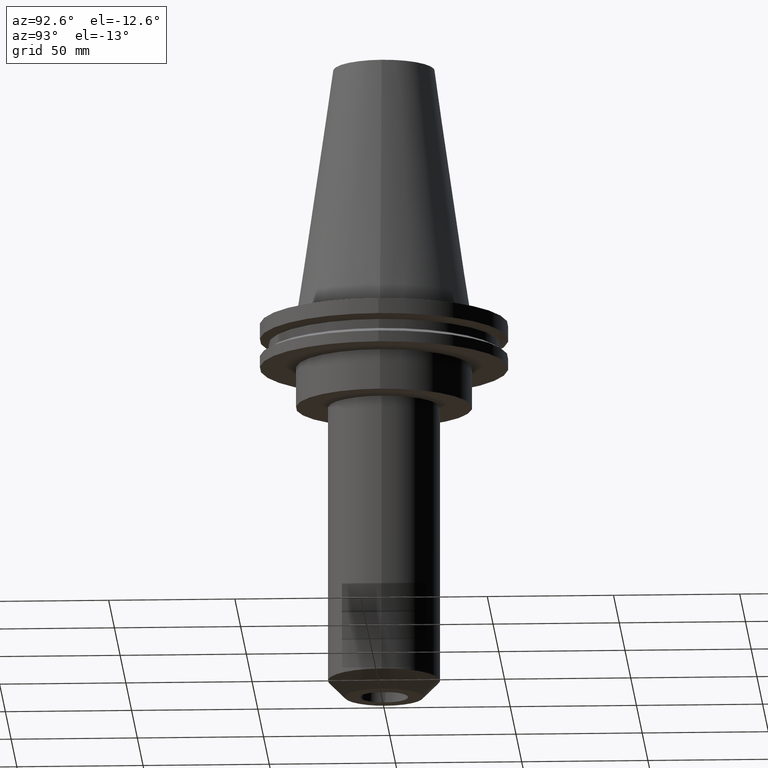
[diagram: clean part render]
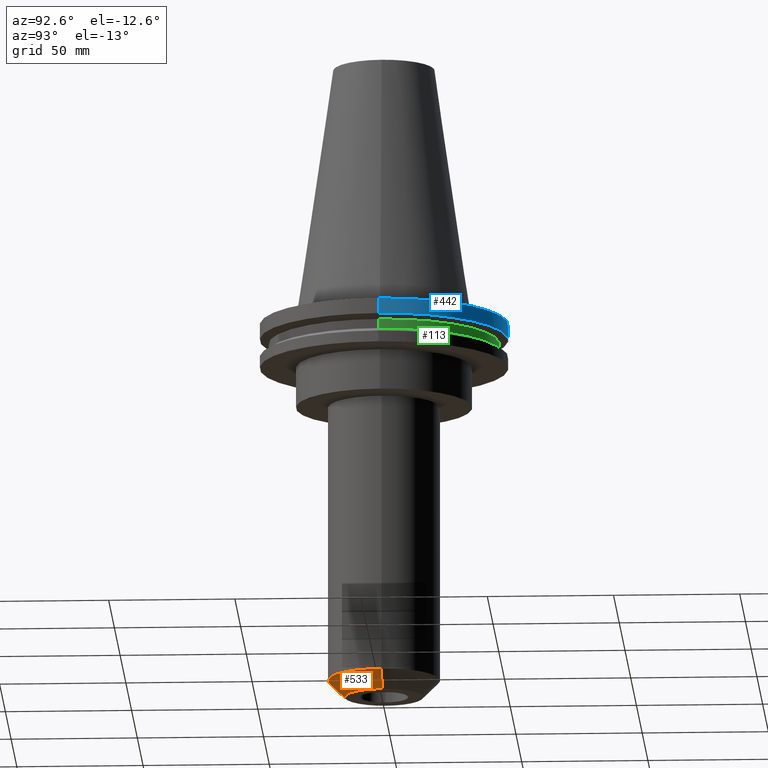
[diagram: same view with three faces highlighted in distinct colors, each labeled with its STEP entity id]
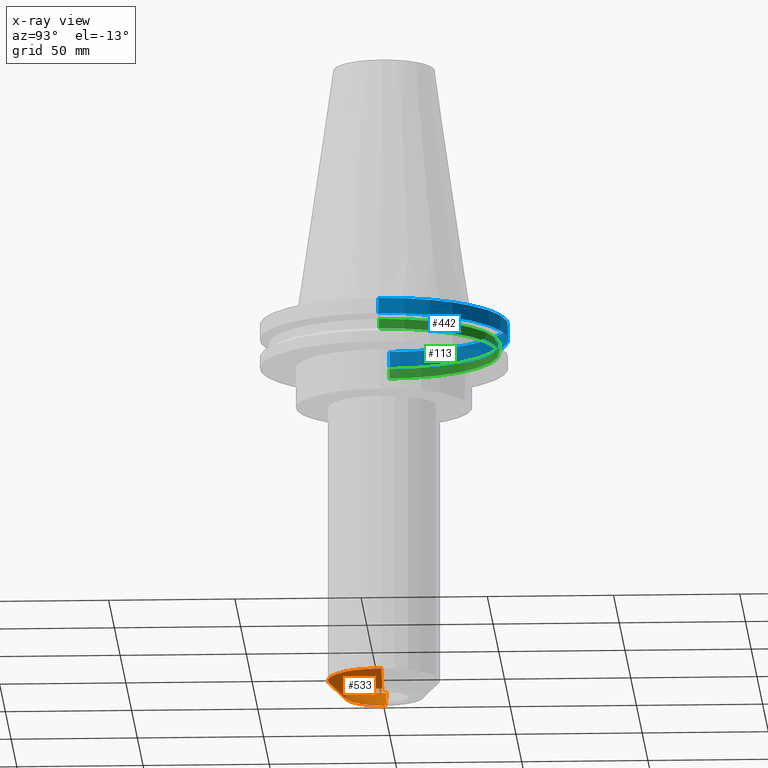
[diagram: x-ray of the same camera — body ghosted, the three highlighted faces saturated]
A machine part, auxiliary view with three faces highlighted in distinct colors.
The next image is the same camera in x-ray (body ghosted, the three faces saturated) — at least one of them is partly hidden behind the body in this view.
Their STEP definitions:

[orange] entity #533 — the highlighted conical surface has half-angle 45 deg.
#11 = CARTESIAN_POINT ( 'NONE',  ( 22.22500000000000497, 0.000000000000000000, -145.6999999999999318 ) ) ;
#35 = ORIENTED_EDGE ( 'NONE', *, *, #445, .F. ) ;
#37 = CIRCLE ( 'NONE', #520, 22.22500000000000497 ) ;
#68 = DIRECTION ( 'NONE',  ( 1.000000000000000000, 0.000000000000000000, 0.000000000000000000 ) ) ;
#116 = CARTESIAN_POINT ( 'NONE',  ( -15.52499999999991154, 2.311520833390623949E-15, -152.4000000000000057 ) ) ;
#151 = ORIENTED_EDGE ( 'NONE', *, *, #794, .T. ) ;
#170 = AXIS2_PLACEMENT_3D ( 'NONE', #377, #254, #394 ) ;
#205 = DIRECTION ( 'NONE',  ( 0.7071067811865489050, 0.000000000000000000, 0.7071067811865462405 ) ) ;
#231 = DIRECTION ( 'NONE',  ( -0.000000000000000000, -0.000000000000000000, 1.000000000000000000 ) ) ;
#241 = ORIENTED_EDGE ( 'NONE', *, *, #705, .T. ) ;
#246 = CARTESIAN_POINT ( 'NONE',  ( 0.000000000000000000, 0.000000000000000000, -152.4000000000000057 ) ) ;
#254 = DIRECTION ( 'NONE',  ( -0.000000000000000000, -0.000000000000000000, 1.000000000000000000 ) ) ;
#283 = CARTESIAN_POINT ( 'NONE',  ( 15.52499999999991154, 0.000000000000000000, -152.4000000000000057 ) ) ;
#302 = CARTESIAN_POINT ( 'NONE',  ( 0.000000000000000000, 0.000000000000000000, -145.6999999999999318 ) ) ;
#308 = CIRCLE ( 'NONE', #170, 15.52499999999991154 ) ;
#314 = EDGE_CURVE ( 'NONE', #796, #696, #37, .T. ) ;
#326 = VERTEX_POINT ( 'NONE', #828 ) ;
#327 = DIRECTION ( 'NONE',  ( -0.000000000000000000, -0.000000000000000000, 1.000000000000000000 ) ) ;
#333 = CONICAL_SURFACE ( 'NONE', #659, 15.52499999999991154, 0.7853981633974502774 ) ;
#377 = CARTESIAN_POINT ( 'NONE',  ( 0.000000000000000000, 0.000000000000000000, -152.4000000000000057 ) ) ;
#394 = DIRECTION ( 'NONE',  ( 1.000000000000000000, 0.000000000000000000, 0.000000000000000000 ) ) ;
#440 = CARTESIAN_POINT ( 'NONE',  ( -15.52499999999991154, 1.901264155676255050E-15, -152.4000000000000057 ) ) ;
#445 = EDGE_CURVE ( 'NONE', #468, #796, #777, .T. ) ;
#468 = VERTEX_POINT ( 'NONE', #116 ) ;
#520 = AXIS2_PLACEMENT_3D ( 'NONE', #302, #231, #638 ) ;
#533 = ADVANCED_FACE ( 'NONE', ( #842 ), #333, .T. ) ;
#556 = ORIENTED_EDGE ( 'NONE', *, *, #314, .F. ) ;
#588 = CARTESIAN_POINT ( 'NONE',  ( -22.22500000000000497, 2.721777511104993243E-15, -145.6999999999999318 ) ) ;
#591 = EDGE_LOOP ( 'NONE', ( #35, #151, #241, #556 ) ) ;
#638 = DIRECTION ( 'NONE',  ( 1.000000000000000000, 0.000000000000000000, 0.000000000000000000 ) ) ;
#659 = AXIS2_PLACEMENT_3D ( 'NONE', #246, #327, #68 ) ;
#696 = VERTEX_POINT ( 'NONE', #11 ) ;
#705 = EDGE_CURVE ( 'NONE', #326, #696, #745, .T. ) ;
#707 = DIRECTION ( 'NONE',  ( -0.7071067811865489050, 8.659560562354950115E-17, 0.7071067811865462405 ) ) ;
#745 = LINE ( 'NONE', #283, #797 ) ;
#777 = LINE ( 'NONE', #440, #851 ) ;
#794 = EDGE_CURVE ( 'NONE', #468, #326, #308, .T. ) ;
#796 = VERTEX_POINT ( 'NONE', #588 ) ;
#797 = VECTOR ( 'NONE', #205, 1000.000000000000000 ) ;
#828 = CARTESIAN_POINT ( 'NONE',  ( 15.52499999999991154, 0.000000000000000000, -152.4000000000000057 ) ) ;
#842 = FACE_OUTER_BOUND ( 'NONE', #591, .T. ) ;
#851 = VECTOR ( 'NONE', #707, 1000.000000000000000 ) ;

[blue] entity #442 — the highlighted cylindrical surface (partial cylindrical patch) has radius 49.215 mm, axis along (-0, -0, 1).
#24 = DIRECTION ( 'NONE',  ( 1.000000000000000000, 0.000000000000000000, 0.000000000000000000 ) ) ;
#112 = VERTEX_POINT ( 'NONE', #467 ) ;
#114 = DIRECTION ( 'NONE',  ( -0.000000000000000000, -0.000000000000000000, 1.000000000000000000 ) ) ;
#124 = DIRECTION ( 'NONE',  ( -0.000000000000000000, -0.000000000000000000, 1.000000000000000000 ) ) ;
#132 = CIRCLE ( 'NONE', #570, 49.21499999999999631 ) ;
#149 = DIRECTION ( 'NONE',  ( -0.000000000000000000, -0.000000000000000000, 1.000000000000000000 ) ) ;
#171 = DIRECTION ( 'NONE',  ( 1.000000000000000000, 0.000000000000000000, 0.000000000000000000 ) ) ;
#199 = EDGE_LOOP ( 'NONE', ( #703, #232, #368, #244 ) ) ;
#203 = VERTEX_POINT ( 'NONE', #275 ) ;
#210 = CARTESIAN_POINT ( 'NONE',  ( 0.000000000000000000, 0.000000000000000000, -1.499999999999987566 ) ) ;
#222 = EDGE_CURVE ( 'NONE', #112, #583, #554, .T. ) ;
#224 = DIRECTION ( 'NONE',  ( -0.000000000000000000, -0.000000000000000000, 1.000000000000000000 ) ) ;
#232 = ORIENTED_EDGE ( 'NONE', *, *, #222, .T. ) ;
#233 = CARTESIAN_POINT ( 'NONE',  ( 49.21499999999999631, 0.000000000000000000, -1.499999999999987566 ) ) ;
#236 = CARTESIAN_POINT ( 'NONE',  ( 0.000000000000000000, 0.000000000000000000, 101.5999999999999943 ) ) ;
#244 = ORIENTED_EDGE ( 'NONE', *, *, #433, .F. ) ;
#275 = CARTESIAN_POINT ( 'NONE',  ( 49.21500000000000341, 0.000000000000000000, -7.602389855251287187 ) ) ;
#299 = FACE_OUTER_BOUND ( 'NONE', #199, .T. ) ;
#368 = ORIENTED_EDGE ( 'NONE', *, *, #691, .F. ) ;
#372 = VERTEX_POINT ( 'NONE', #233 ) ;
#431 = CARTESIAN_POINT ( 'NONE',  ( -49.21499999999999631, 6.027099222003697826E-15, 101.5999999999999943 ) ) ;
#433 = EDGE_CURVE ( 'NONE', #203, #372, #574, .T. ) ;
#442 = ADVANCED_FACE ( 'NONE', ( #299 ), #572, .T. ) ;
#451 = AXIS2_PLACEMENT_3D ( 'NONE', #236, #114, #171 ) ;
#467 = CARTESIAN_POINT ( 'NONE',  ( -49.21500000000000341, 6.027099222003699404E-15, -7.602389855251287187 ) ) ;
#507 = VECTOR ( 'NONE', #513, 1000.000000000000000 ) ;
#513 = DIRECTION ( 'NONE',  ( -0.000000000000000000, -0.000000000000000000, 1.000000000000000000 ) ) ;
#526 = DIRECTION ( 'NONE',  ( 1.000000000000000000, 0.000000000000000000, 0.000000000000000000 ) ) ;
#554 = LINE ( 'NONE', #431, #838 ) ;
#570 = AXIS2_PLACEMENT_3D ( 'NONE', #210, #224, #24 ) ;
#572 = CYLINDRICAL_SURFACE ( 'NONE', #451, 49.21499999999999631 ) ;
#574 = LINE ( 'NONE', #709, #507 ) ;
#583 = VERTEX_POINT ( 'NONE', #650 ) ;
#596 = EDGE_CURVE ( 'NONE', #203, #112, #767, .T. ) ;
#650 = CARTESIAN_POINT ( 'NONE',  ( -49.21499999999999631, 6.027099222003697826E-15, -1.499999999999987566 ) ) ;
#677 = AXIS2_PLACEMENT_3D ( 'NONE', #723, #124, #526 ) ;
#691 = EDGE_CURVE ( 'NONE', #372, #583, #132, .T. ) ;
#703 = ORIENTED_EDGE ( 'NONE', *, *, #596, .T. ) ;
#709 = CARTESIAN_POINT ( 'NONE',  ( 49.21499999999999631, 0.000000000000000000, 101.5999999999999943 ) ) ;
#723 = CARTESIAN_POINT ( 'NONE',  ( 0.000000000000000000, 0.000000000000000000, -7.602389855251287187 ) ) ;
#767 = CIRCLE ( 'NONE', #677, 49.21500000000000341 ) ;
#838 = VECTOR ( 'NONE', #149, 1000.000000000000000 ) ;

[green] entity #113 — the highlighted cylindrical surface (partial cylindrical patch) has radius 45.645 mm, axis along (-0, -0, 1).
#10 = AXIS2_PLACEMENT_3D ( 'NONE', #251, #737, #70 ) ;
#16 = CARTESIAN_POINT ( 'NONE',  ( 45.64500000000000313, 0.000000000000000000, 101.5999999999999943 ) ) ;
#42 = VERTEX_POINT ( 'NONE', #663 ) ;
#70 = DIRECTION ( 'NONE',  ( 1.000000000000000000, 0.000000000000000000, 0.000000000000000000 ) ) ;
#104 = VERTEX_POINT ( 'NONE', #122 ) ;
#113 = ADVANCED_FACE ( 'NONE', ( #590 ), #667, .T. ) ;
#120 = VECTOR ( 'NONE', #598, 1000.000000000000000 ) ;
#122 = CARTESIAN_POINT ( 'NONE',  ( 45.64500000000000313, 0.000000000000000000, -9.204999999999991189 ) ) ;
#178 = ORIENTED_EDGE ( 'NONE', *, *, #827, .T. ) ;
#186 = AXIS2_PLACEMENT_3D ( 'NONE', #601, #262, #379 ) ;
#204 = EDGE_LOOP ( 'NONE', ( #178, #218, #608, #649 ) ) ;
#218 = ORIENTED_EDGE ( 'NONE', *, *, #834, .T. ) ;
#251 = CARTESIAN_POINT ( 'NONE',  ( 0.000000000000000000, 0.000000000000000000, 101.5999999999999943 ) ) ;
#259 = DIRECTION ( 'NONE',  ( -0.000000000000000000, -0.000000000000000000, 1.000000000000000000 ) ) ;
#262 = DIRECTION ( 'NONE',  ( -0.000000000000000000, -0.000000000000000000, 1.000000000000000000 ) ) ;
#281 = CIRCLE ( 'NONE', #498, 45.64500000000000313 ) ;
#295 = VECTOR ( 'NONE', #809, 1000.000000000000000 ) ;
#303 = VERTEX_POINT ( 'NONE', #824 ) ;
#379 = DIRECTION ( 'NONE',  ( 1.000000000000000000, 0.000000000000000000, 0.000000000000000000 ) ) ;
#449 = CIRCLE ( 'NONE', #186, 45.64500000000000313 ) ;
#498 = AXIS2_PLACEMENT_3D ( 'NONE', #847, #259, #735 ) ;
#523 = LINE ( 'NONE', #800, #120 ) ;
#551 = EDGE_CURVE ( 'NONE', #104, #303, #449, .T. ) ;
#590 = FACE_OUTER_BOUND ( 'NONE', #204, .T. ) ;
#598 = DIRECTION ( 'NONE',  ( -0.000000000000000000, -0.000000000000000000, 1.000000000000000000 ) ) ;
#601 = CARTESIAN_POINT ( 'NONE',  ( 0.000000000000000000, 0.000000000000000000, -9.204999999999991189 ) ) ;
#608 = ORIENTED_EDGE ( 'NONE', *, *, #551, .F. ) ;
#609 = LINE ( 'NONE', #16, #295 ) ;
#647 = EDGE_CURVE ( 'NONE', #826, #104, #609, .T. ) ;
#649 = ORIENTED_EDGE ( 'NONE', *, *, #647, .F. ) ;
#663 = CARTESIAN_POINT ( 'NONE',  ( -45.64500000000000313, 5.589900314708094957E-15, -13.05499999999999794 ) ) ;
#667 = CYLINDRICAL_SURFACE ( 'NONE', #10, 45.64500000000000313 ) ;
#735 = DIRECTION ( 'NONE',  ( 1.000000000000000000, 0.000000000000000000, 0.000000000000000000 ) ) ;
#737 = DIRECTION ( 'NONE',  ( -0.000000000000000000, -0.000000000000000000, 1.000000000000000000 ) ) ;
#800 = CARTESIAN_POINT ( 'NONE',  ( -45.64500000000000313, 5.589900314708094957E-15, 101.5999999999999943 ) ) ;
#809 = DIRECTION ( 'NONE',  ( -0.000000000000000000, -0.000000000000000000, 1.000000000000000000 ) ) ;
#824 = CARTESIAN_POINT ( 'NONE',  ( -45.64500000000000313, 5.589900314708094957E-15, -9.204999999999991189 ) ) ;
#826 = VERTEX_POINT ( 'NONE', #843 ) ;
#827 = EDGE_CURVE ( 'NONE', #826, #42, #281, .T. ) ;
#834 = EDGE_CURVE ( 'NONE', #42, #303, #523, .T. ) ;
#843 = CARTESIAN_POINT ( 'NONE',  ( 45.64500000000000313, 0.000000000000000000, -13.05499999999999794 ) ) ;
#847 = CARTESIAN_POINT ( 'NONE',  ( 0.000000000000000000, 0.000000000000000000, -13.05499999999999794 ) ) ;